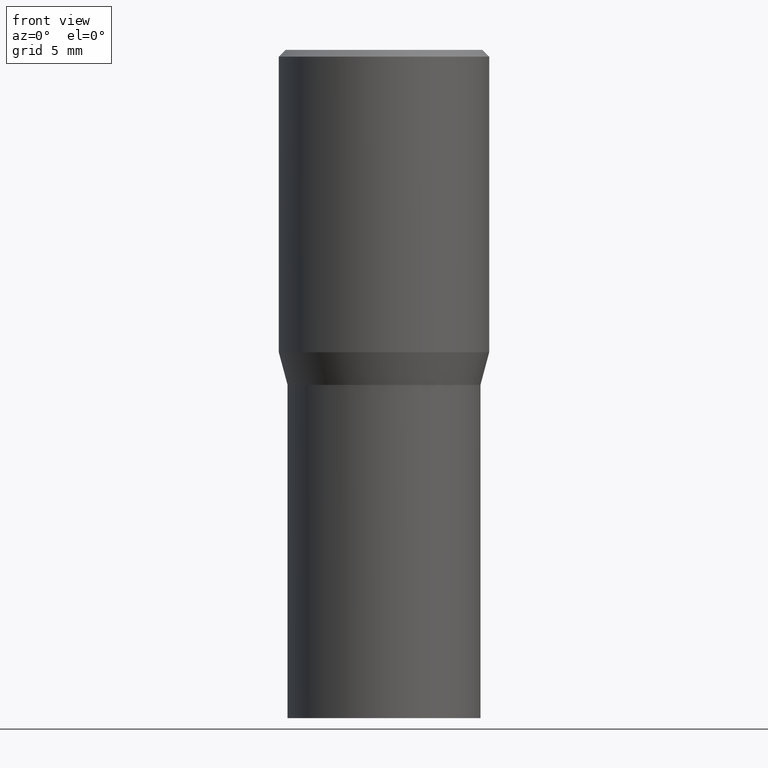
[diagram: clean part render]
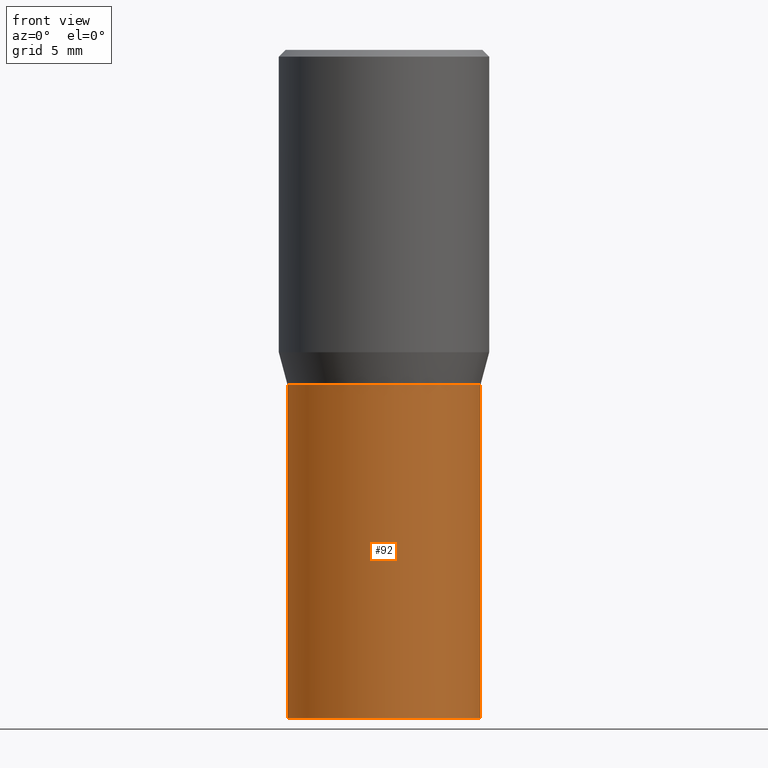
[diagram: same view with one face highlighted and labeled with its STEP entity id]
A machine part, front view. The second image highlights one B-rep face of the part: STEP entity #92.
In plain terms, the highlighted cylindrical surface (partial cylindrical patch) has radius 5.5004 mm, axis along (-0, 0, 1).
Its self-contained STEP definition (entity closure, byte-faithful):
#1 = CARTESIAN_POINT ( 'NONE',  ( 0.2165500000000000203, -6.749382576117678999E-15, -1.500000000000000222 ) ) ;
#9 = DIRECTION ( 'NONE',  ( -2.445468806185136877E-29, 3.491481338843145188E-15, 1.000000000000000000 ) ) ;
#12 = CARTESIAN_POINT ( 'NONE',  ( -0.2165500000000000203, -2.392727693248884740E-15, -1.500000000000000222 ) ) ;
#23 = EDGE_LOOP ( 'NONE', ( #97, #36, #346, #224 ) ) ;
#36 = ORIENTED_EDGE ( 'NONE', *, *, #432, .T. ) ;
#38 = LINE ( 'NONE', #256, #333 ) ;
#43 = CARTESIAN_POINT ( 'NONE',  ( 1.838992542251222813E-29, -2.625593966810045497E-15, -0.7520000000000001128 ) ) ;
#87 = CARTESIAN_POINT ( 'NONE',  ( -0.2165500000000000203, 1.538680294288497096E-15, -1.065195393794699923E-29 ) ) ;
#92 = ADVANCED_FACE ( 'NONE', ( #122 ), #302, .T. ) ;
#97 = ORIENTED_EDGE ( 'NONE', *, *, #273, .F. ) ;
#107 = AXIS2_PLACEMENT_3D ( 'NONE', #43, #297, #166 ) ;
#122 = FACE_OUTER_BOUND ( 'NONE', #23, .T. ) ;
#132 = CARTESIAN_POINT ( 'NONE',  ( -0.2165500000000000203, -2.392727693248884740E-15, -0.7520000000000001128 ) ) ;
#156 = CARTESIAN_POINT ( 'NONE',  ( 0.2165500000000000203, -4.137754534663007109E-15, -0.7520000000000001128 ) ) ;
#162 = CARTESIAN_POINT ( 'NONE',  ( 0.000000000000000000, 0.000000000000000000, 0.000000000000000000 ) ) ;
#166 = DIRECTION ( 'NONE',  ( 1.000000000000000000, -6.982962677686266711E-15, 0.000000000000000000 ) ) ;
#184 = AXIS2_PLACEMENT_3D ( 'NONE', #247, #276, #363 ) ;
#224 = ORIENTED_EDGE ( 'NONE', *, *, #447, .F. ) ;
#238 = VECTOR ( 'NONE', #369, 39.37007874015748143 ) ;
#244 = AXIS2_PLACEMENT_3D ( 'NONE', #162, #299, #376 ) ;
#247 = CARTESIAN_POINT ( 'NONE',  ( 3.668203209277704895E-29, -5.237222008264718177E-15, -1.500000000000000222 ) ) ;
#256 = CARTESIAN_POINT ( 'NONE',  ( 0.2165500000000000203, -1.512160567852961217E-15, 1.055936080798610036E-29 ) ) ;
#273 = EDGE_CURVE ( 'NONE', #274, #416, #295, .T. ) ;
#274 = VERTEX_POINT ( 'NONE', #12 ) ;
#276 = DIRECTION ( 'NONE',  ( -2.445468806185136597E-29, 3.491481338843145583E-15, 1.000000000000000000 ) ) ;
#289 = CIRCLE ( 'NONE', #107, 0.2165500000000000203 ) ;
#295 = LINE ( 'NONE', #87, #238 ) ;
#297 = DIRECTION ( 'NONE',  ( -2.445468806185136597E-29, 3.491481338843145583E-15, 1.000000000000000000 ) ) ;
#299 = DIRECTION ( 'NONE',  ( -2.445468806185136597E-29, 3.491481338843145583E-15, 1.000000000000000000 ) ) ;
#302 = CYLINDRICAL_SURFACE ( 'NONE', #244, 0.2165500000000000203 ) ;
#326 = VERTEX_POINT ( 'NONE', #156 ) ;
#333 = VECTOR ( 'NONE', #9, 39.37007874015748143 ) ;
#342 = EDGE_CURVE ( 'NONE', #412, #326, #38, .T. ) ;
#346 = ORIENTED_EDGE ( 'NONE', *, *, #342, .T. ) ;
#363 = DIRECTION ( 'NONE',  ( 1.000000000000000000, -6.982962677686264344E-15, 0.000000000000000000 ) ) ;
#369 = DIRECTION ( 'NONE',  ( -2.445468806185136877E-29, 3.491481338843145188E-15, 1.000000000000000000 ) ) ;
#375 = CIRCLE ( 'NONE', #184, 0.2165500000000000203 ) ;
#376 = DIRECTION ( 'NONE',  ( 1.000000000000000000, -6.982962677686266711E-15, 4.876176775795935793E-29 ) ) ;
#412 = VERTEX_POINT ( 'NONE', #1 ) ;
#416 = VERTEX_POINT ( 'NONE', #132 ) ;
#432 = EDGE_CURVE ( 'NONE', #274, #412, #375, .T. ) ;
#447 = EDGE_CURVE ( 'NONE', #416, #326, #289, .T. ) ;